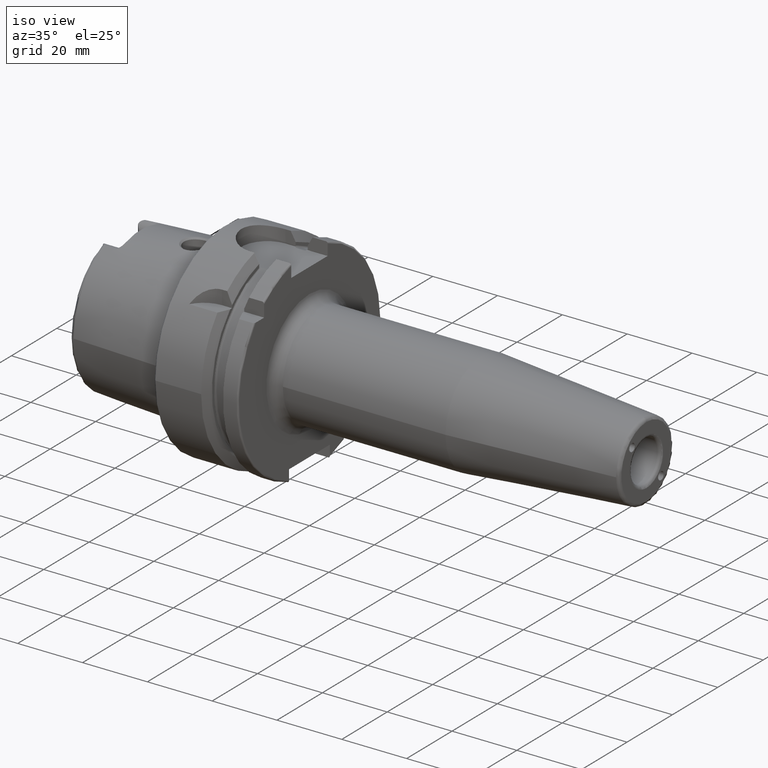
[diagram: clean part render]
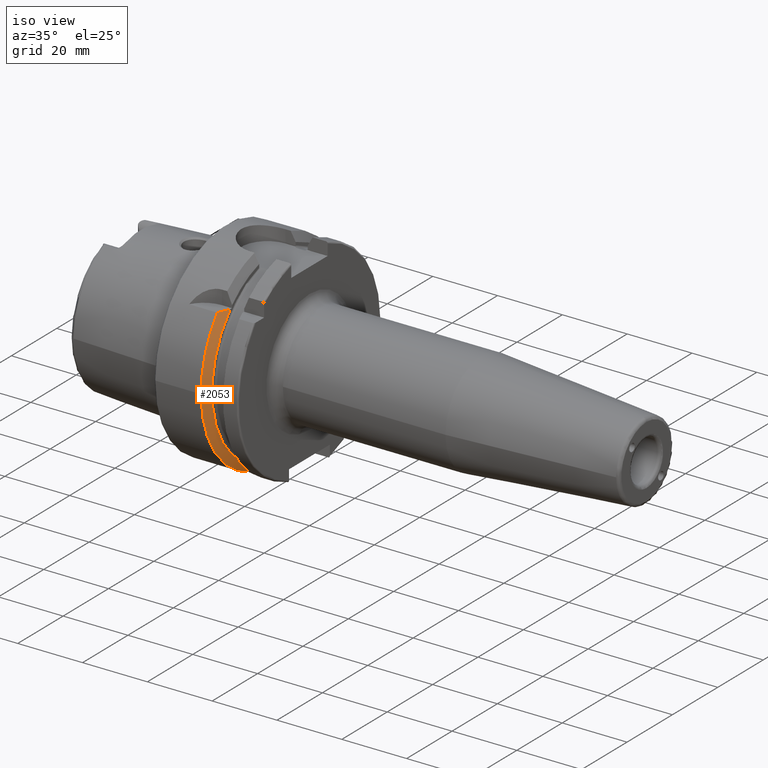
[diagram: same view with one face highlighted and labeled with its STEP entity id]
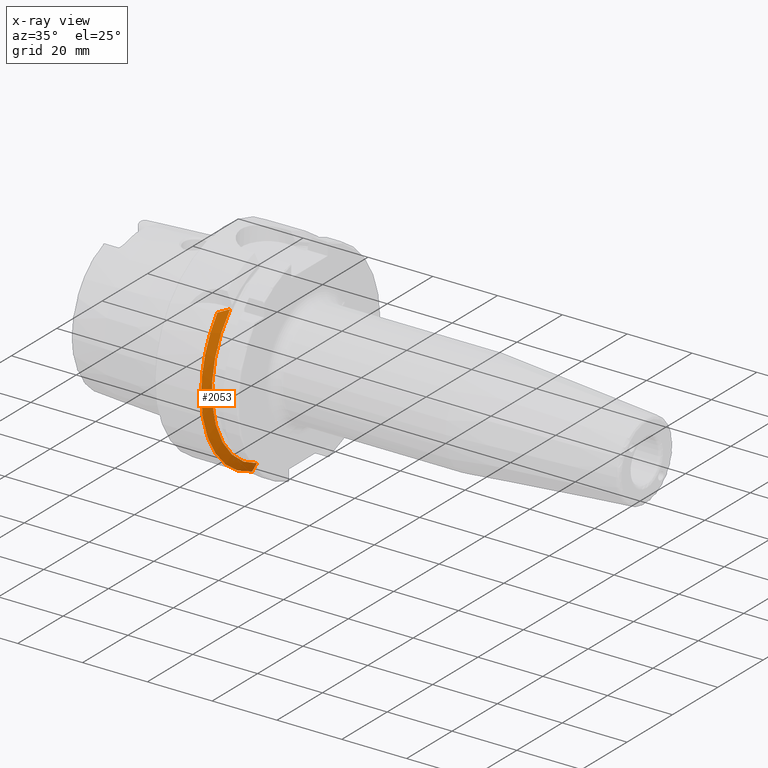
[diagram: x-ray of the same camera — body ghosted, the highlighted face saturated]
A machine part, iso view. The second image highlights one B-rep face of the part: STEP entity #2053.
The next image is the same camera in x-ray: the body ghosted, the highlighted face saturated — about 1% of this face is hidden behind the body in this view.
In plain terms, the highlighted conical surface has half-angle 60 deg.
Its self-contained STEP definition (entity closure, byte-faithful):
#18=(
BOUNDED_CURVE()
B_SPLINE_CURVE(2,(#3920,#3921,#3922),.UNSPECIFIED.,.F.,.F.)
B_SPLINE_CURVE_WITH_KNOTS((3,3),(0.,0.378858277140998),.UNSPECIFIED.)
CURVE()
GEOMETRIC_REPRESENTATION_ITEM()
RATIONAL_B_SPLINE_CURVE((1.,1.00166199353848,1.))
REPRESENTATION_ITEM('')
);
#21=(
BOUNDED_CURVE()
B_SPLINE_CURVE(2,(#3980,#3981,#3982),.UNSPECIFIED.,.F.,.F.)
B_SPLINE_CURVE_WITH_KNOTS((3,3),(0.,0.311314369989023),.UNSPECIFIED.)
CURVE()
GEOMETRIC_REPRESENTATION_ITEM()
RATIONAL_B_SPLINE_CURVE((1.,1.00102053193494,1.))
REPRESENTATION_ITEM('')
);
#260=FACE_OUTER_BOUND('',#389,.T.);
#389=EDGE_LOOP('',(#1600,#1601,#1602,#1603,#1604));
#744=CIRCLE('',#2260,28.8975952641916);
#747=CIRCLE('',#2264,31.5);
#748=CIRCLE('',#2265,31.5);
#930=VERTEX_POINT('',#3912);
#933=VERTEX_POINT('',#3918);
#940=VERTEX_POINT('',#3966);
#944=VERTEX_POINT('',#3976);
#945=VERTEX_POINT('',#3978);
#1178=EDGE_CURVE('',#930,#933,#18,.T.);
#1188=EDGE_CURVE('',#930,#940,#744,.T.);
#1193=EDGE_CURVE('',#933,#944,#747,.T.);
#1194=EDGE_CURVE('',#944,#945,#748,.T.);
#1195=EDGE_CURVE('',#945,#940,#21,.T.);
#1600=ORIENTED_EDGE('',*,*,#1178,.T.);
#1601=ORIENTED_EDGE('',*,*,#1193,.T.);
#1602=ORIENTED_EDGE('',*,*,#1194,.T.);
#1603=ORIENTED_EDGE('',*,*,#1195,.T.);
#1604=ORIENTED_EDGE('',*,*,#1188,.F.);
#1995=CONICAL_SURFACE('',#2263,30.1987976320958,1.0471975511966);
#2053=ADVANCED_FACE('',(#260),#1995,.T.);
#2260=AXIS2_PLACEMENT_3D('',#3967,#2688,#2689);
#2263=AXIS2_PLACEMENT_3D('',#3975,#2696,#2697);
#2264=AXIS2_PLACEMENT_3D('',#3977,#2698,#2699);
#2265=AXIS2_PLACEMENT_3D('',#3979,#2700,#2701);
#2688=DIRECTION('center_axis',(1.,0.,0.));
#2689=DIRECTION('ref_axis',(0.,0.,-1.));
#2696=DIRECTION('center_axis',(-1.,0.,0.));
#2697=DIRECTION('ref_axis',(0.,-0.966819045705046,-0.255462194584608));
#2698=DIRECTION('center_axis',(1.,0.,0.));
#2699=DIRECTION('ref_axis',(0.,0.,-1.));
#2700=DIRECTION('center_axis',(1.,0.,0.));
#2701=DIRECTION('ref_axis',(0.,0.,-1.));
#3912=CARTESIAN_POINT('',(16.125,-20.8583559288126,20.));
#3918=CARTESIAN_POINT('',(14.6225009252407,-24.3361870472759,20.));
#3920=CARTESIAN_POINT('Ctrl Pts',(16.125,-20.8583559288126,20.));
#3921=CARTESIAN_POINT('Ctrl Pts',(15.4315609602333,-22.5223452916163,20.));
#3922=CARTESIAN_POINT('Ctrl Pts',(14.6225009252407,-24.3361870472759,20.));
#3966=CARTESIAN_POINT('',(16.125,-9.,-27.4603534582684));
#3967=CARTESIAN_POINT('Origin',(16.125,0.,0.));
#3975=CARTESIAN_POINT('Origin',(15.3737504626203,0.,0.));
#3976=CARTESIAN_POINT('',(14.6225009252407,-31.5,-3.85763741731416E-15));
#3977=CARTESIAN_POINT('Origin',(14.6225009252407,0.,0.));
#3978=CARTESIAN_POINT('',(14.6225009252407,-9.,-30.1869176962472));
#3979=CARTESIAN_POINT('Origin',(14.6225009252407,0.,0.));
#3980=CARTESIAN_POINT('Ctrl Pts',(14.6225009252407,-9.,-30.1869176962472));
#3981=CARTESIAN_POINT('Ctrl Pts',(15.4092825889741,-9.,-28.7648946319013));
#3982=CARTESIAN_POINT('Ctrl Pts',(16.125,-9.,-27.4603534582684));